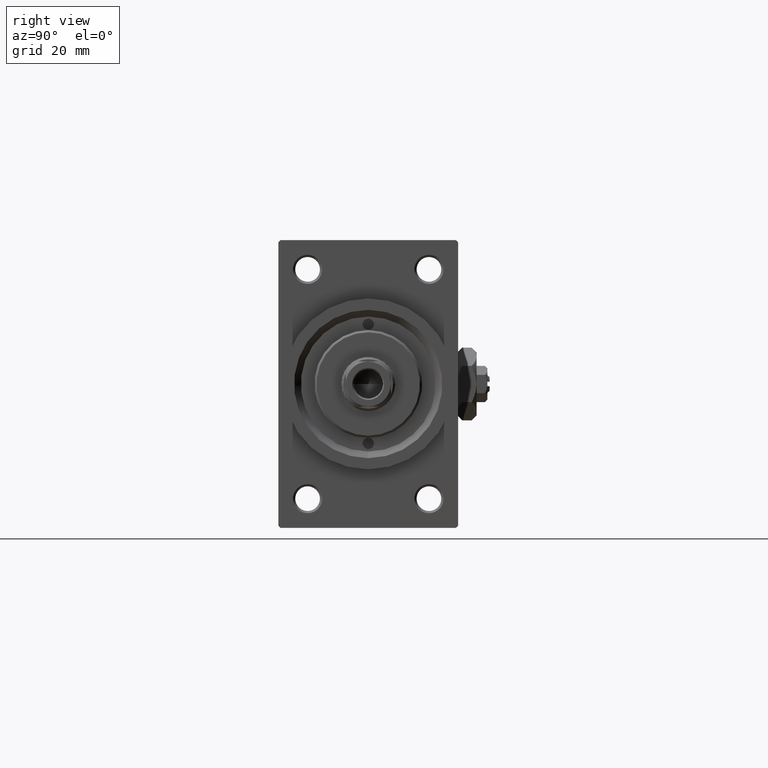
[diagram: clean part render]
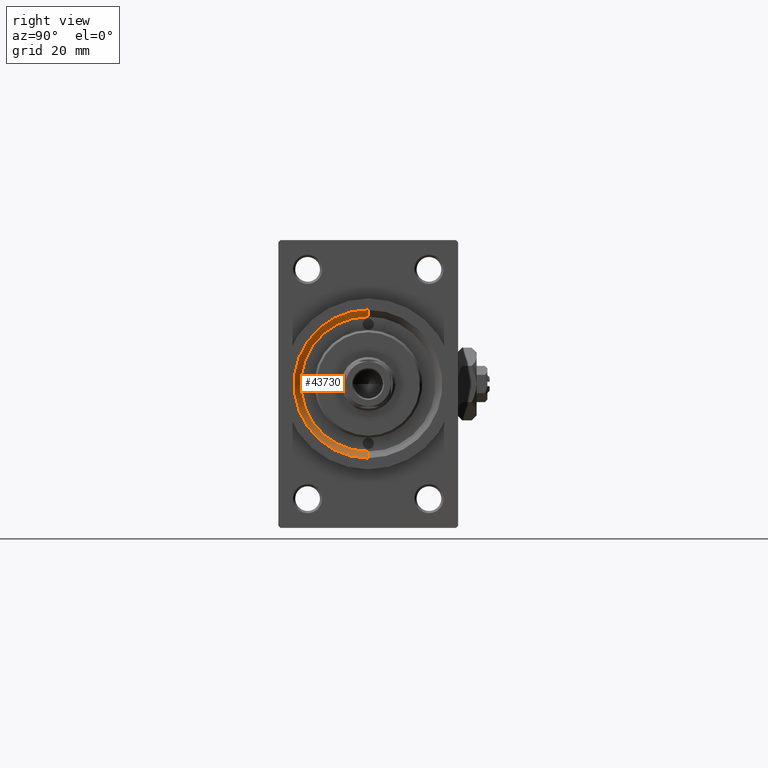
[diagram: same view with one face highlighted and labeled with its STEP entity id]
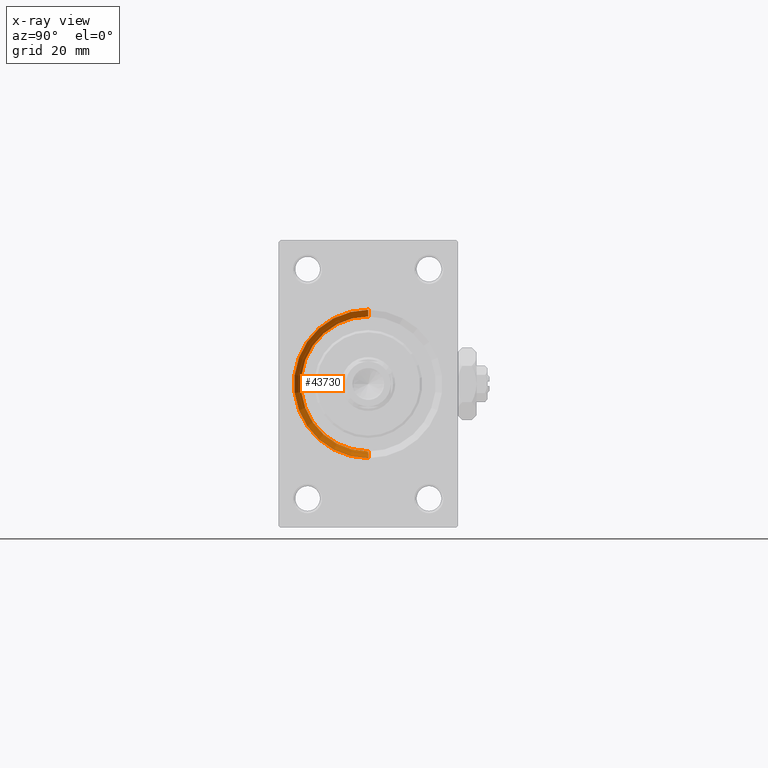
[diagram: x-ray of the same camera — body ghosted, the highlighted face saturated]
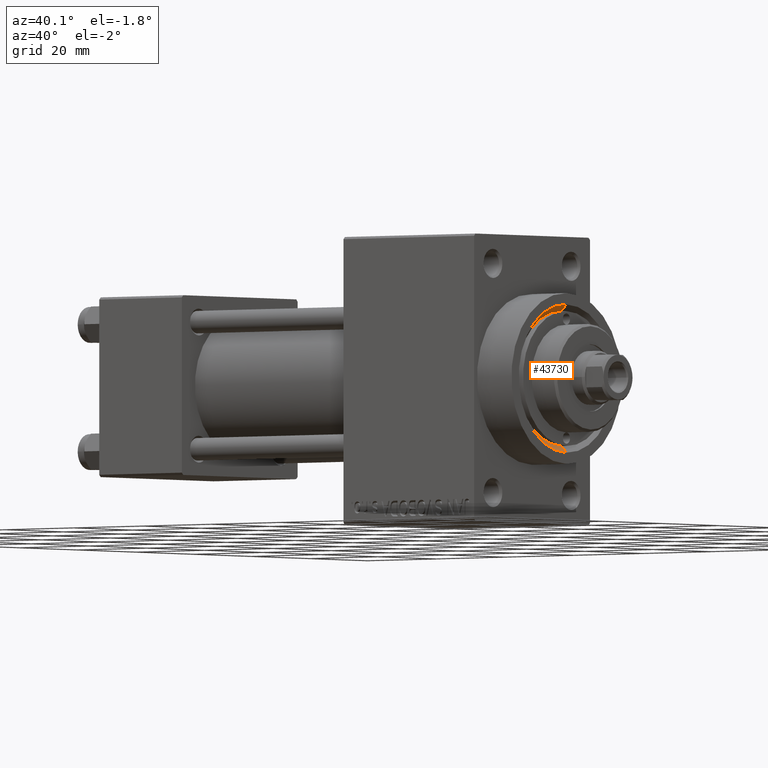
[diagram: same view with one face highlighted and labeled with its STEP entity id]
A machine part, right view. The second image highlights one B-rep face of the part: STEP entity #43730.
The next image is the same camera in x-ray: the body ghosted, the highlighted face saturated — about 0% of this face is hidden behind the body in this view.
A second angle (auxiliary view) of the same face is appended — the face is thin or edge-on in the first view.
In plain terms, the highlighted conical surface has half-angle 45 deg.
Its self-contained STEP definition (entity closure, byte-faithful):
#47 = CARTESIAN_POINT ( 'NONE',  ( 117.5000000000000000, 1.836970198721029589E-15, 15.00000000000000000 ) ) ;
#1112 = CONICAL_SURFACE ( 'NONE', #13798, 15.00000000000000000, 0.7853981633974437271 ) ;
#1249 = VERTEX_POINT ( 'NONE', #3385 ) ;
#2844 = EDGE_CURVE ( 'NONE', #19306, #1249, #23256, .T. ) ;
#3385 = CARTESIAN_POINT ( 'NONE',  ( 119.0000000000000142, 2.020667218593132706E-15, 16.50000000000000000 ) ) ;
#8217 = CARTESIAN_POINT ( 'NONE',  ( 119.0000000000000142, 0.000000000000000000, -16.50000000000000000 ) ) ;
#8843 = DIRECTION ( 'NONE',  ( 1.000000000000000000, 0.000000000000000000, 0.000000000000000000 ) ) ;
#9585 = CARTESIAN_POINT ( 'NONE',  ( 117.5000000000000000, 0.000000000000000000, 0.000000000000000000 ) ) ;
#12804 = FACE_OUTER_BOUND ( 'NONE', #44328, .T. ) ;
#13510 = DIRECTION ( 'NONE',  ( 0.000000000000000000, 0.000000000000000000, -1.000000000000000000 ) ) ;
#13566 = ORIENTED_EDGE ( 'NONE', *, *, #20478, .F. ) ;
#13798 = AXIS2_PLACEMENT_3D ( 'NONE', #9585, #8843, #24667 ) ;
#15649 = DIRECTION ( 'NONE',  ( 0.000000000000000000, 0.000000000000000000, -1.000000000000000000 ) ) ;
#16325 = DIRECTION ( 'NONE',  ( 0.7071067811865507924, 0.000000000000000000, -0.7071067811865441310 ) ) ;
#18117 = ORIENTED_EDGE ( 'NONE', *, *, #2844, .F. ) ;
#19294 = EDGE_CURVE ( 'NONE', #42538, #1249, #26550, .T. ) ;
#19306 = VERTEX_POINT ( 'NONE', #8217 ) ;
#19415 = CIRCLE ( 'NONE', #31306, 15.00000000000000000 ) ;
#20478 = EDGE_CURVE ( 'NONE', #33067, #19306, #39624, .T. ) ;
#23233 = ORIENTED_EDGE ( 'NONE', *, *, #37612, .F. ) ;
#23256 = CIRCLE ( 'NONE', #29606, 16.50000000000000000 ) ;
#24565 = CARTESIAN_POINT ( 'NONE',  ( 117.5000000000000000, 1.836970198721029589E-15, 15.00000000000000000 ) ) ;
#24667 = DIRECTION ( 'NONE',  ( 0.000000000000000000, 0.000000000000000000, -1.000000000000000000 ) ) ;
#26550 = LINE ( 'NONE', #47, #45827 ) ;
#27945 = CARTESIAN_POINT ( 'NONE',  ( 117.5000000000000000, 0.000000000000000000, -15.00000000000000000 ) ) ;
#29582 = DIRECTION ( 'NONE',  ( 1.000000000000000000, 0.000000000000000000, 0.000000000000000000 ) ) ;
#29606 = AXIS2_PLACEMENT_3D ( 'NONE', #45395, #34471, #15649 ) ;
#31306 = AXIS2_PLACEMENT_3D ( 'NONE', #40014, #29582, #13510 ) ;
#33067 = VERTEX_POINT ( 'NONE', #42145 ) ;
#34471 = DIRECTION ( 'NONE',  ( -1.000000000000000000, -0.000000000000000000, -0.000000000000000000 ) ) ;
#36066 = ORIENTED_EDGE ( 'NONE', *, *, #19294, .T. ) ;
#36385 = VECTOR ( 'NONE', #16325, 1000.000000000000114 ) ;
#37612 = EDGE_CURVE ( 'NONE', #42538, #33067, #19415, .T. ) ;
#39624 = LINE ( 'NONE', #27945, #36385 ) ;
#40014 = CARTESIAN_POINT ( 'NONE',  ( 117.5000000000000000, 0.000000000000000000, 0.000000000000000000 ) ) ;
#41689 = DIRECTION ( 'NONE',  ( 0.7071067811865507924, 8.659560562354892183E-17, 0.7071067811865441310 ) ) ;
#42145 = CARTESIAN_POINT ( 'NONE',  ( 117.5000000000000000, 0.000000000000000000, -15.00000000000000000 ) ) ;
#42538 = VERTEX_POINT ( 'NONE', #24565 ) ;
#43730 = ADVANCED_FACE ( 'NONE', ( #12804 ), #1112, .F. ) ;
#44328 = EDGE_LOOP ( 'NONE', ( #23233, #36066, #18117, #13566 ) ) ;
#45395 = CARTESIAN_POINT ( 'NONE',  ( 119.0000000000000142, 0.000000000000000000, 0.000000000000000000 ) ) ;
#45827 = VECTOR ( 'NONE', #41689, 1000.000000000000114 ) ;